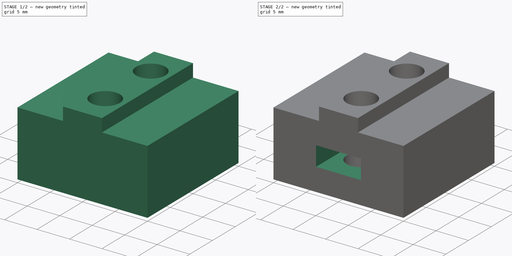
[diagram: build sequence overview — one tinted view per stage of 2, left to right]
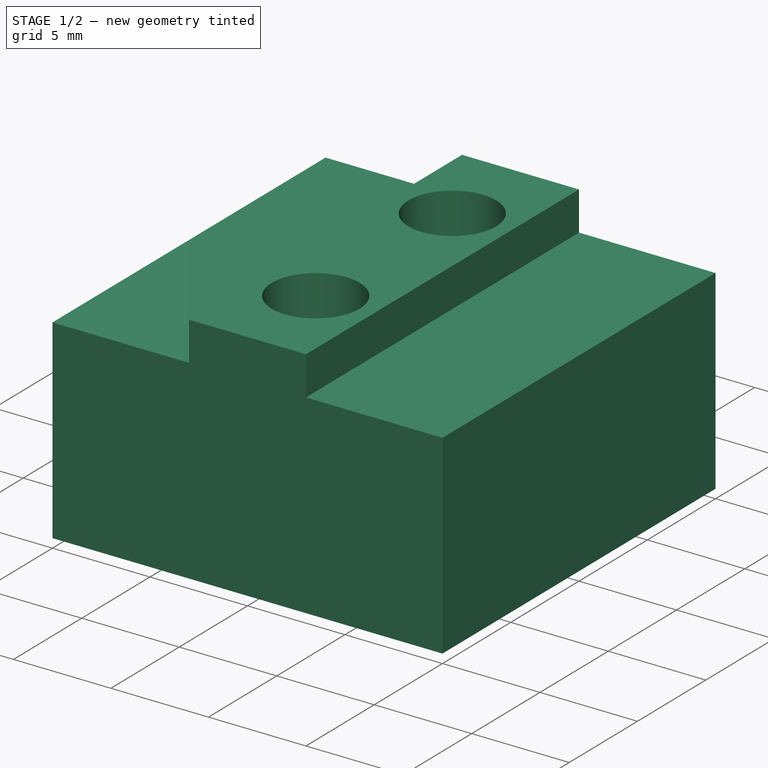
[diagram: stage 1 of 2 — iso view after this stage's code; geometry added in this stage tinted green]
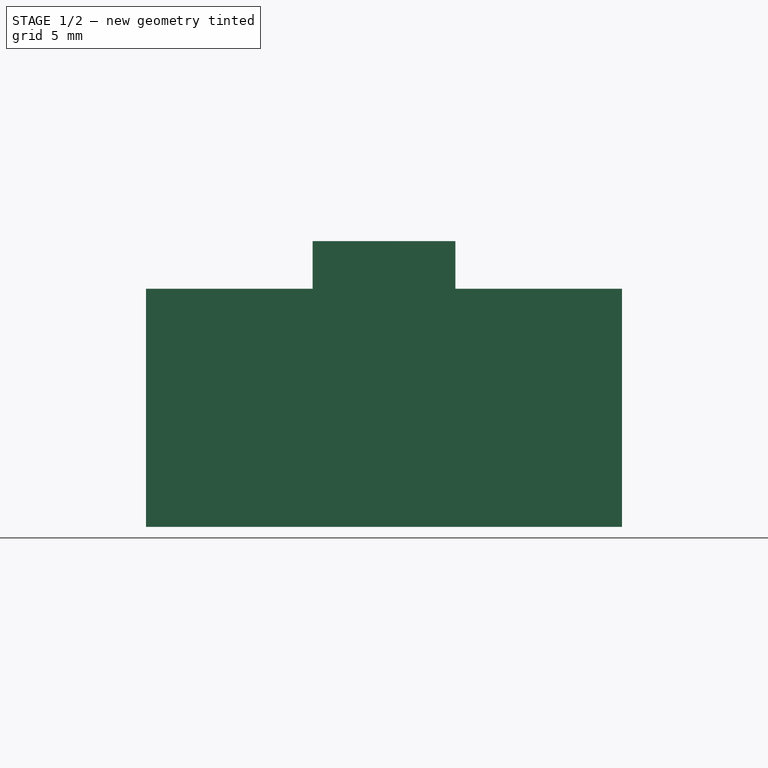
[diagram: stage 1 of 2 — front view after this stage's code; geometry added in this stage tinted green]
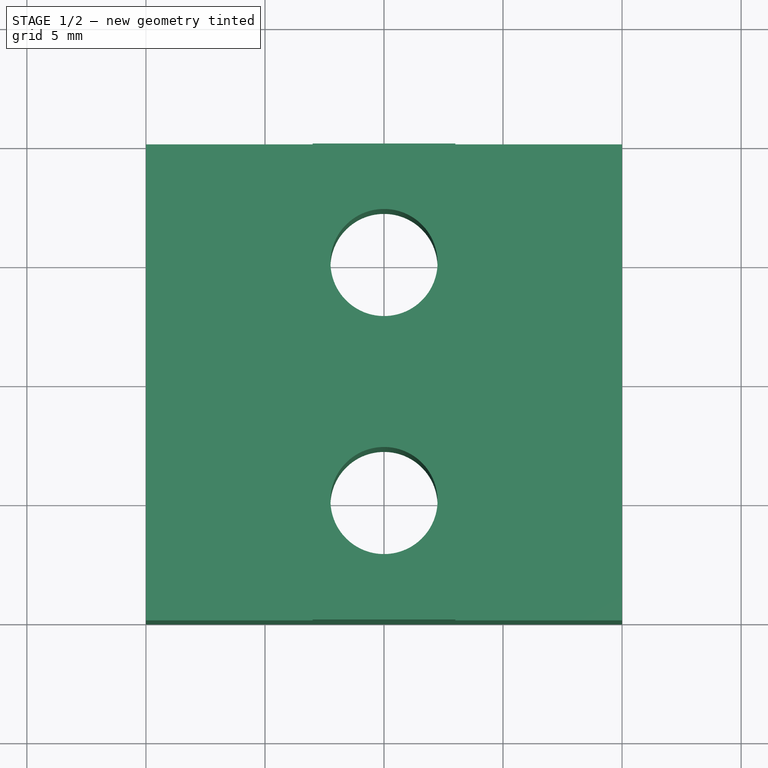
[diagram: stage 1 of 2 — top view after this stage's code; geometry added in this stage tinted green]
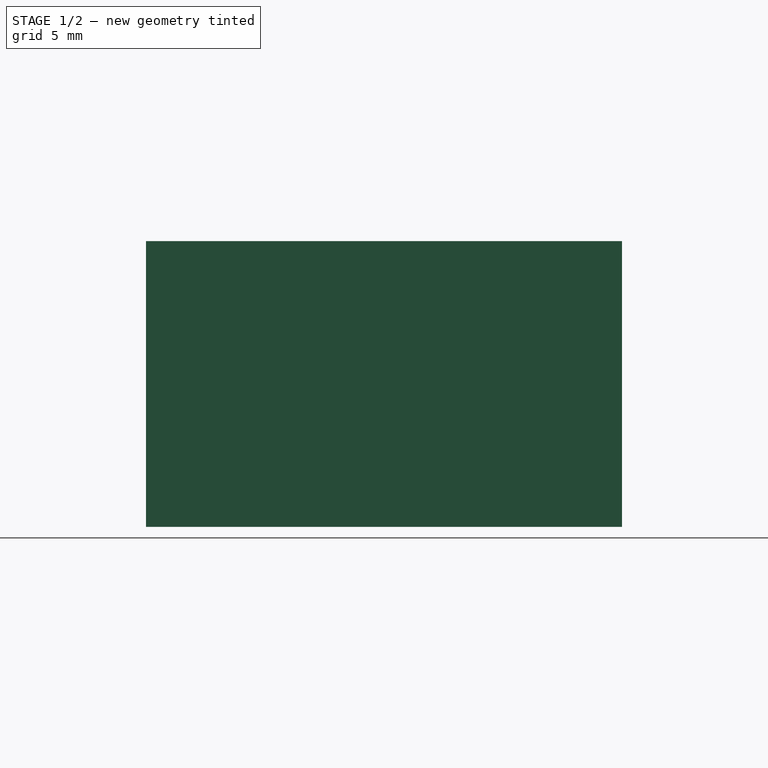
[diagram: stage 1 of 2 — right view after this stage's code; geometry added in this stage tinted green]
FCSTD DOCUMENT  (FreeCAD 0.14R3700 (Git))
Label: Z-endstop-adjust
License: CC-BY 3.0
LicenseURL: http://creativecommons.org/licenses/by/3.0/
objects: Sketcher::SketchObject×3, PartDesign::Pad×2, PartDesign::Pocket×1, Part::Feature×1
note: 10 computed .brp shape members not serialized (recipe doc carries the construction recipe); baked Part::Feature solids carry a one-line shape summary decoded from their .brp

FEATURE [Sketcher::SketchObject] Sketch
  sketch-geometry (6):
    g0: LineSegment StartX=-10 StartY=-10 StartZ=0 EndX=10 EndY=-10 EndZ=0
    g1: LineSegment StartX=10 StartY=-10 StartZ=0 EndX=10 EndY=10 EndZ=0
    g2: LineSegment StartX=10 StartY=10 StartZ=0 EndX=-10 EndY=10 EndZ=0
    g3: LineSegment StartX=-10 StartY=10 StartZ=0 EndX=-10 EndY=-10 EndZ=0
    g4: Circle CenterX=0 CenterY=5 CenterZ=0 NormalX=0 NormalY=0 NormalZ=1 Radius=2.25
    g5: Circle CenterX=0 CenterY=-5 CenterZ=0 NormalX=0 NormalY=0 NormalZ=1 Radius=2.25
  constraints (18):
    c: Coincident(g0,g1)
    c: Coincident(g1,g2)
    c: Coincident(g2,g3)
    c: Coincident(g3,g0)
    c: Horizontal(g0)
    c: Horizontal(g2)
    c: Vertical(g1)
    c: Vertical(g3)
    c: Symmetric(g0,g0,g-2)
    c: Symmetric(g0,g2,g-1)
    c: Distance(g0) = 20
    c: Distance(g3) = 20
    c: PointOnObject(g4,g-2)
    c: PointOnObject(g5,g-2)
    c: Equal(g5,g4)
    c: Distance(g5,g4) = 10
    c: DistanceY(g5,g0) = -5
    c: Radius(g4) = 2.25
FEATURE [PartDesign::Pad] Pad
  Length = 10
  Length2 = 100
  Sketch = -> Sketch
  Type = 0
FEATURE [Sketcher::SketchObject] Sketch001
  ExternalGeometry = -> [Pad]
  Placement = pos=(0,0,10) rot=(0,0,1;0rad)
  Support = -> Pad [Face8]
  sketch-geometry (6):
    g0: LineSegment StartX=-3 StartY=10 StartZ=0 EndX=3 EndY=10 EndZ=0
    g1: LineSegment StartX=3 StartY=10 StartZ=0 EndX=3 EndY=-10 EndZ=0
    g2: LineSegment StartX=3 StartY=-10 StartZ=0 EndX=-3 EndY=-10 EndZ=0
    g3: LineSegment StartX=-3 StartY=-10 StartZ=0 EndX=-3 EndY=10 EndZ=0
    g4: Circle CenterX=0 CenterY=5 CenterZ=0 NormalX=0 NormalY=0 NormalZ=1 Radius=2.25
    g5: Circle CenterX=0 CenterY=-5 CenterZ=0 NormalX=0 NormalY=0 NormalZ=1 Radius=2.25
  constraints (16):
    c: Coincident(g0,g1)
    c: Coincident(g1,g2)
    c: Coincident(g2,g3)
    c: Coincident(g3,g0)
    c: Horizontal(g0)
    c: Horizontal(g2)
    c: Vertical(g1)
    c: Vertical(g3)
    c: PointOnObject(g0,g-3)
    c: PointOnObject(g1,g-4)
    c: Symmetric(g2,g1,g-2)
    c: Distance(g2,g1) = 6
    c: Coincident(g5,g-6)
    c: Equal(g5,g4)
    c: Equal(g4,g-5)
    c: Coincident(g4,g-5)
FEATURE [PartDesign::Pad] Pad001
  Length = 2
  Length2 = 100
  Sketch = -> Sketch001
  Type = 0
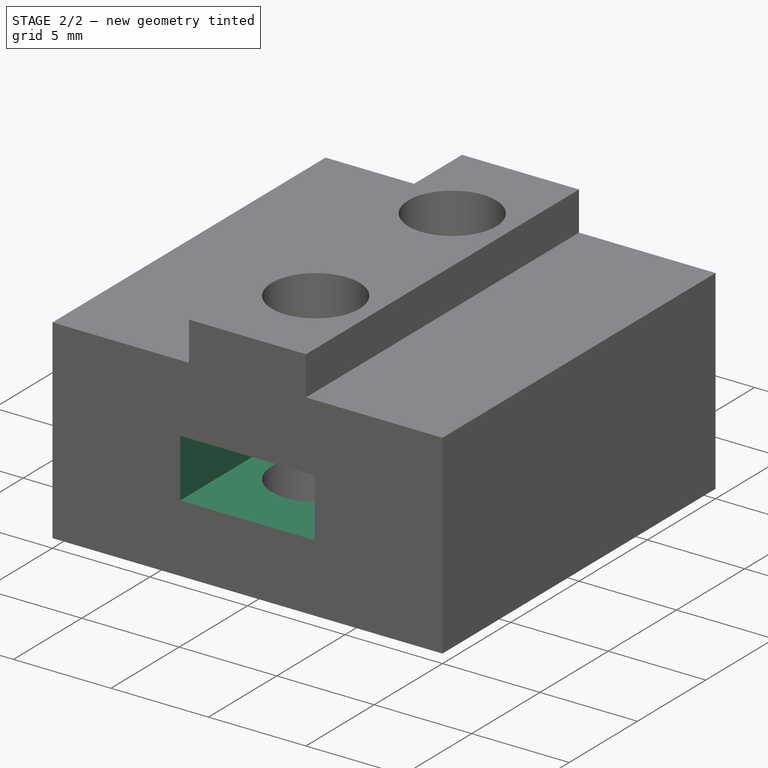
[diagram: stage 2 of 2 — iso view after this stage's code; geometry added in this stage tinted green]
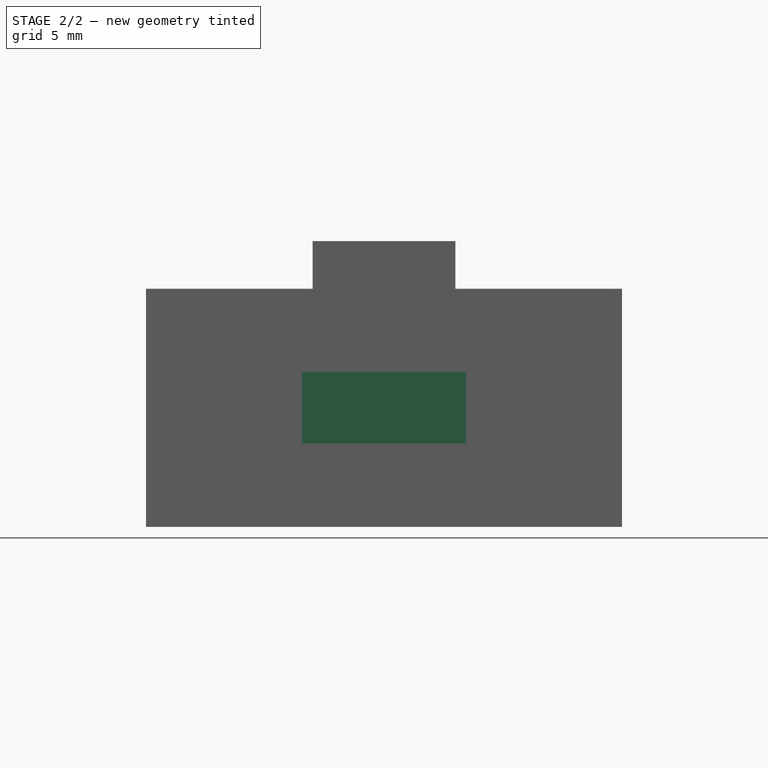
[diagram: stage 2 of 2 — front view after this stage's code; geometry added in this stage tinted green]
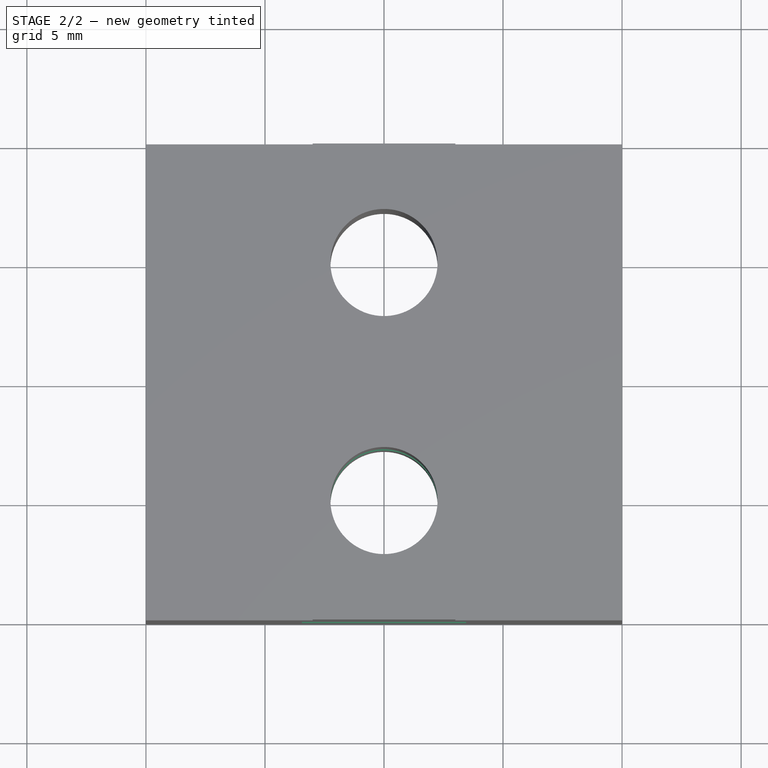
[diagram: stage 2 of 2 — top view after this stage's code; geometry added in this stage tinted green]
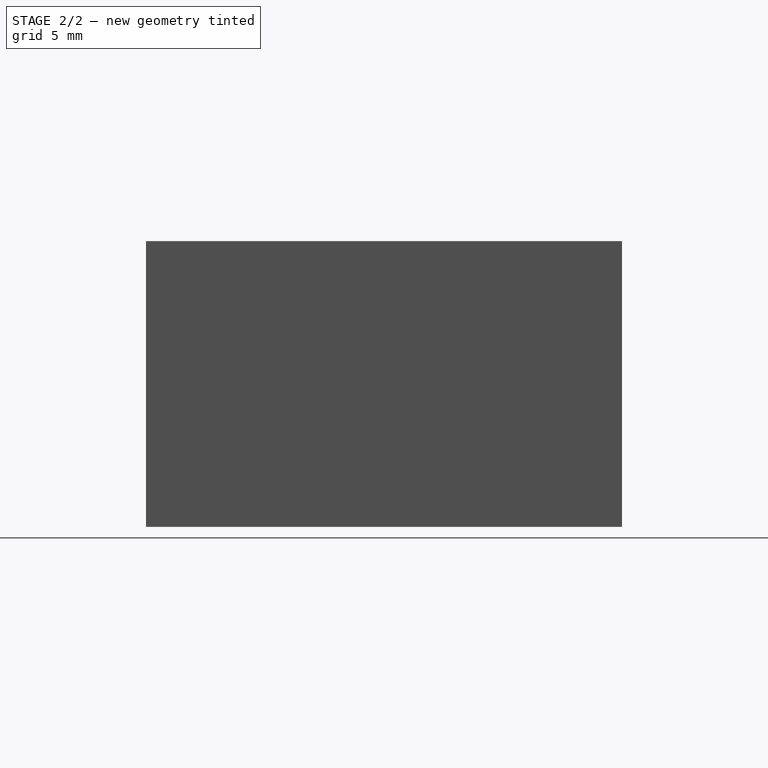
[diagram: stage 2 of 2 — right view after this stage's code; geometry added in this stage tinted green]
FEATURE [Sketcher::SketchObject] Sketch002
  Placement = pos=(0,-10,0) rot=(1,0,0;1.5708rad)
  Support = -> Pad001 [Face2]
  sketch-geometry (4):
    g0: LineSegment StartX=-3.45 StartY=6.5 StartZ=0 EndX=3.45 EndY=6.5 EndZ=0
    g1: LineSegment StartX=3.45 StartY=6.5 StartZ=0 EndX=3.45 EndY=3.5 EndZ=0
    g2: LineSegment StartX=3.45 StartY=3.5 StartZ=0 EndX=-3.45 EndY=3.5 EndZ=0
    g3: LineSegment StartX=-3.45 StartY=3.5 StartZ=0 EndX=-3.45 EndY=6.5 EndZ=0
  constraints (12):
    c: Coincident(g0,g1)
    c: Coincident(g1,g2)
    c: Coincident(g2,g3)
    c: Coincident(g3,g0)
    c: Horizontal(g0)
    c: Horizontal(g2)
    c: Vertical(g1)
    c: Vertical(g3)
    c: Symmetric(g1,g2,g-2)
    c: Distance(g1) = 3
    c: Distance(g0) = 6.9
    c: DistanceY(g-1,g2) = 3.5
FEATURE [PartDesign::Pocket] Pocket
  Length = 10
  Sketch = -> Sketch002
  Type = 0
FEATURE [Part::Feature] Pocket001  label="Z-endstop-adjust"
  shape: bbox 20 x 20 x 12 mm, 18 faces (baked)
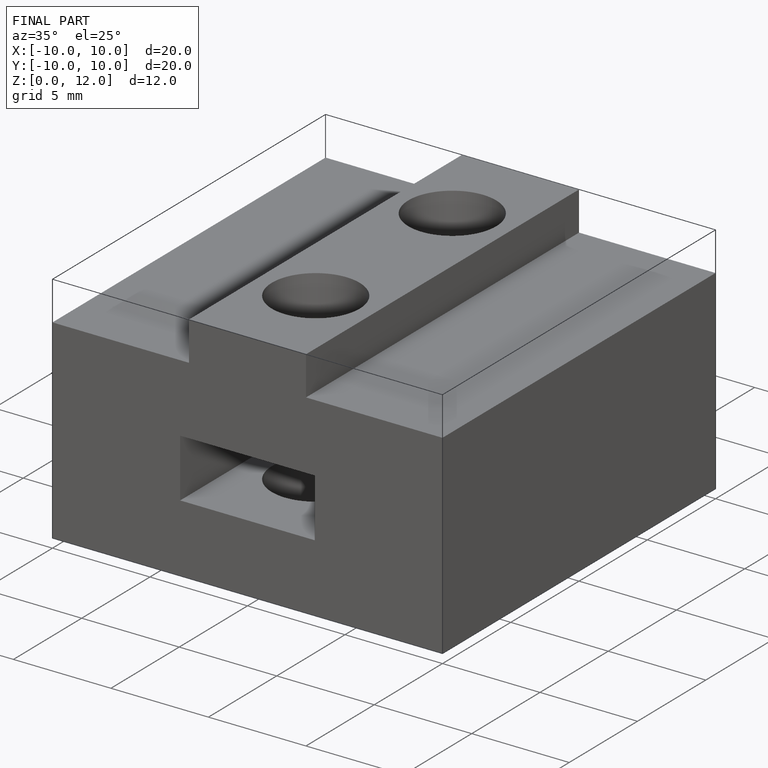
[diagram: finished part — iso view with bounding-box wireframe]
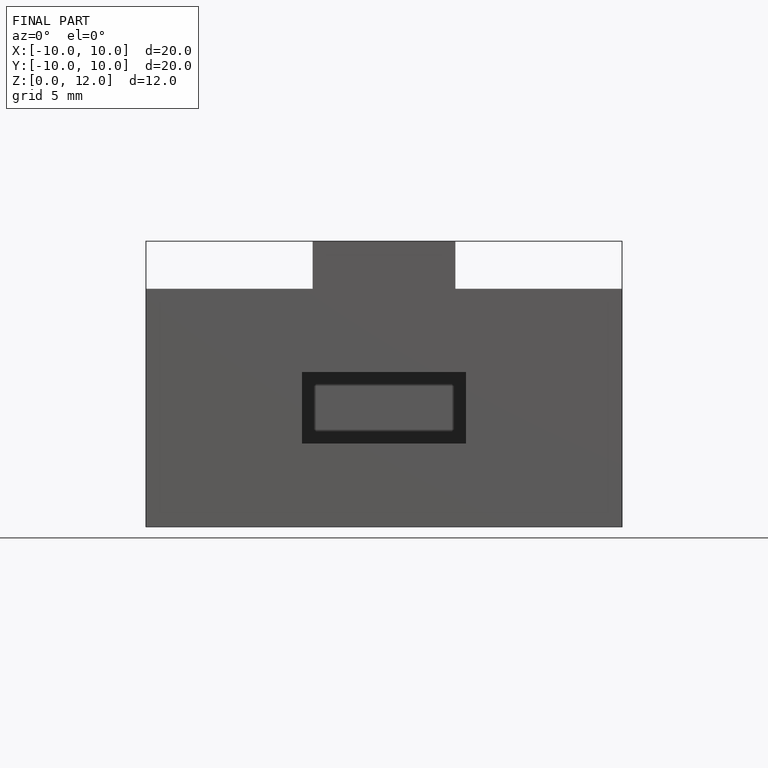
[diagram: finished part — front view with bounding-box wireframe]
